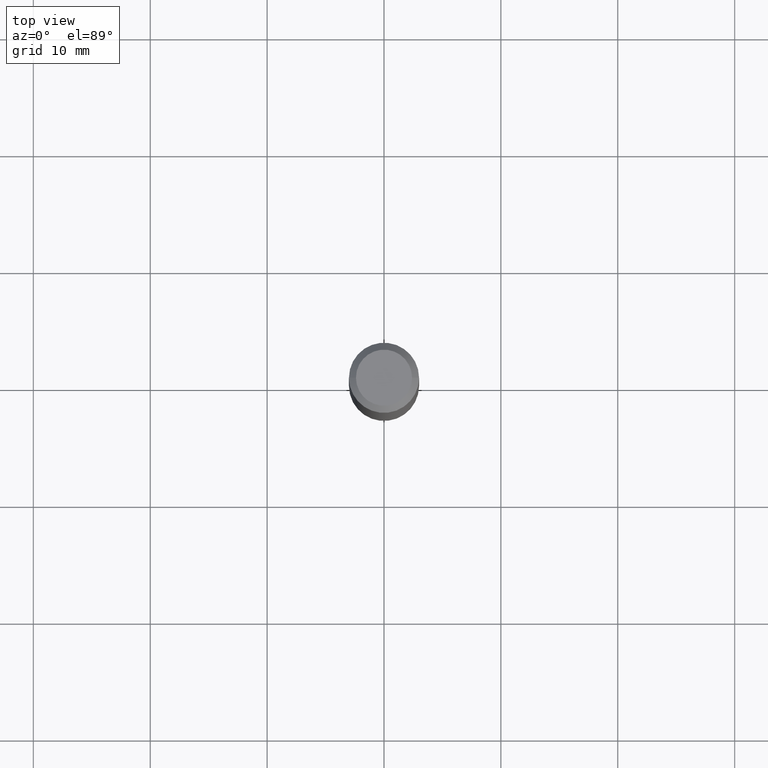
[diagram: clean part render]
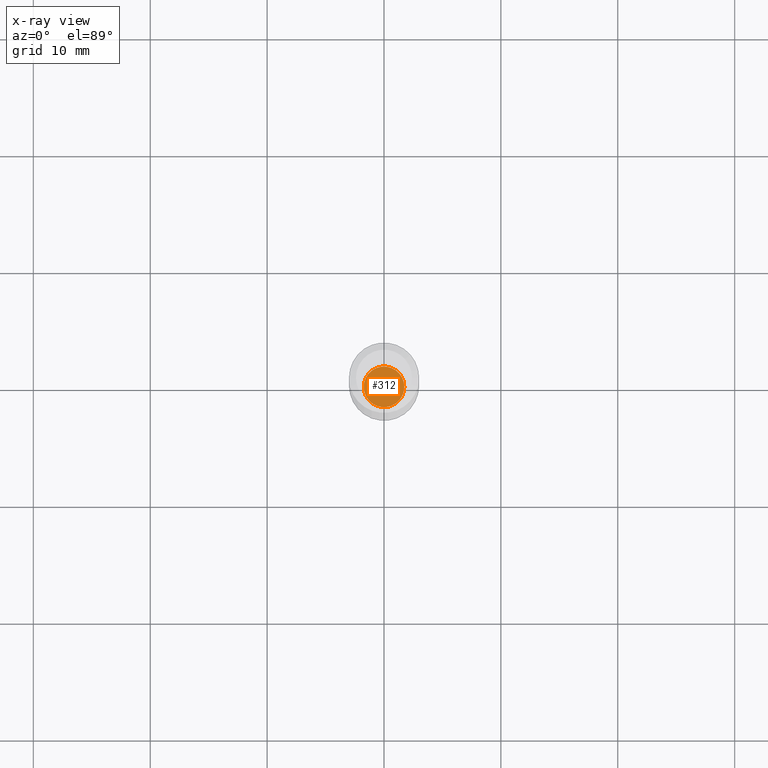
[diagram: x-ray — body ghosted, one internal face saturated and labeled with its STEP entity id]
A machine part, top view, then the same camera in x-ray: the body is ghosted and one INTERNAL B-rep face — a face not visible from any outside direction — is saturated and labeled: STEP entity #312.
In plain terms, the highlighted planar face has unit normal (-0, 0, 1).
Its self-contained STEP definition (entity closure, byte-faithful):
#30 = CIRCLE ( 'NONE', #103, 0.06840000000000000246 ) ;
#40 = CARTESIAN_POINT ( 'NONE',  ( 4.380568272519433819E-29, -6.254290522269724810E-15, -1.791299999999999448 ) ) ;
#43 = DIRECTION ( 'NONE',  ( -2.438088387897960049E-29, 3.491481338843145188E-15, 1.000000000000000000 ) ) ;
#69 = PLANE ( 'NONE',  #221 ) ;
#94 = CARTESIAN_POINT ( 'NONE',  ( -0.06840000000000000246, -5.765630063835704966E-15, -1.791299999999999448 ) ) ;
#103 = AXIS2_PLACEMENT_3D ( 'NONE', #421, #461, #332 ) ;
#124 = CARTESIAN_POINT ( 'NONE',  ( 0.06840000000000000246, -6.731925169423465541E-15, -1.791299999999999448 ) ) ;
#155 = CIRCLE ( 'NONE', #443, 0.06840000000000000246 ) ;
#165 = VERTEX_POINT ( 'NONE', #124 ) ;
#188 = EDGE_CURVE ( 'NONE', #165, #434, #155, .T. ) ;
#193 = DIRECTION ( 'NONE',  ( 1.000000000000000000, -6.982962677686265922E-15, 4.876176775795935793E-29 ) ) ;
#221 = AXIS2_PLACEMENT_3D ( 'NONE', #40, #43, #193 ) ;
#229 = EDGE_LOOP ( 'NONE', ( #374, #422 ) ) ;
#239 = EDGE_CURVE ( 'NONE', #434, #165, #30, .T. ) ;
#280 = DIRECTION ( 'NONE',  ( -2.445468806185136597E-29, 3.491481338843145583E-15, 1.000000000000000000 ) ) ;
#312 = ADVANCED_FACE ( 'NONE', ( #411 ), #69, .F. ) ;
#323 = DIRECTION ( 'NONE',  ( 1.000000000000000000, -6.982962677686273810E-15, 0.000000000000000000 ) ) ;
#332 = DIRECTION ( 'NONE',  ( 1.000000000000000000, -6.982962677686273810E-15, 0.000000000000000000 ) ) ;
#374 = ORIENTED_EDGE ( 'NONE', *, *, #188, .F. ) ;
#411 = FACE_OUTER_BOUND ( 'NONE', #229, .T. ) ;
#421 = CARTESIAN_POINT ( 'NONE',  ( 4.380568272519433819E-29, -6.254290522269724810E-15, -1.791299999999999448 ) ) ;
#422 = ORIENTED_EDGE ( 'NONE', *, *, #239, .F. ) ;
#434 = VERTEX_POINT ( 'NONE', #94 ) ;
#443 = AXIS2_PLACEMENT_3D ( 'NONE', #473, #280, #323 ) ;
#461 = DIRECTION ( 'NONE',  ( -2.445468806185136597E-29, 3.491481338843145583E-15, 1.000000000000000000 ) ) ;
#473 = CARTESIAN_POINT ( 'NONE',  ( 4.380568272519433819E-29, -6.254290522269724810E-15, -1.791299999999999448 ) ) ;